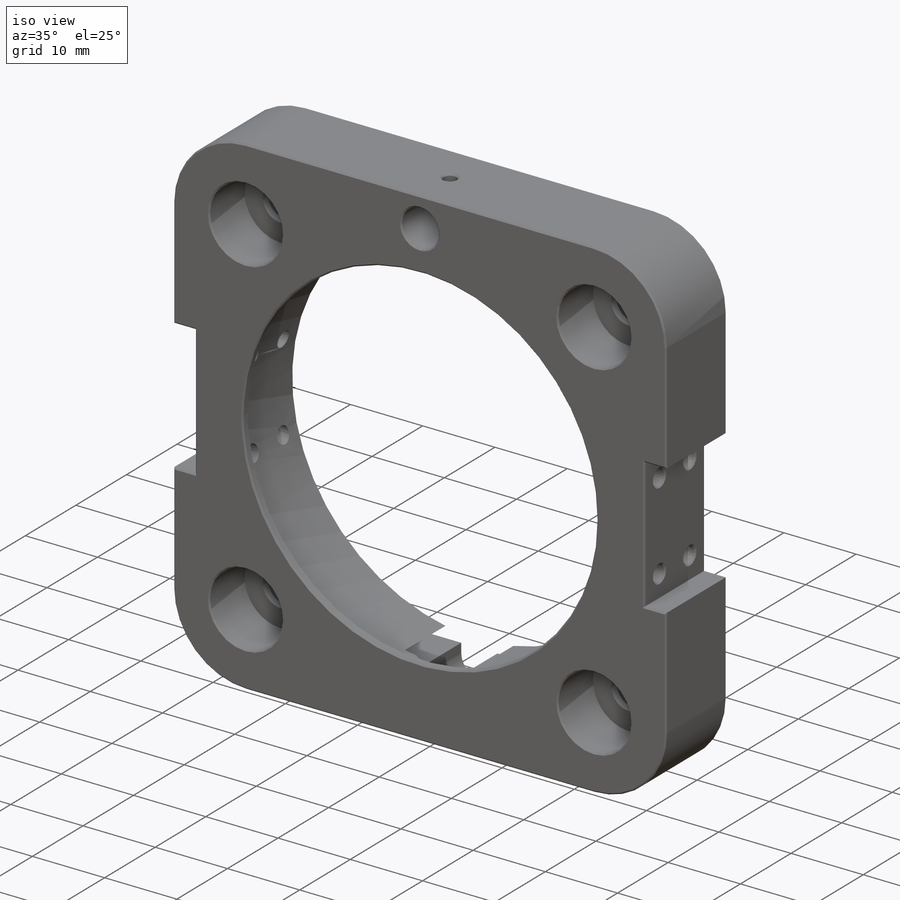
[diagram: iso view]
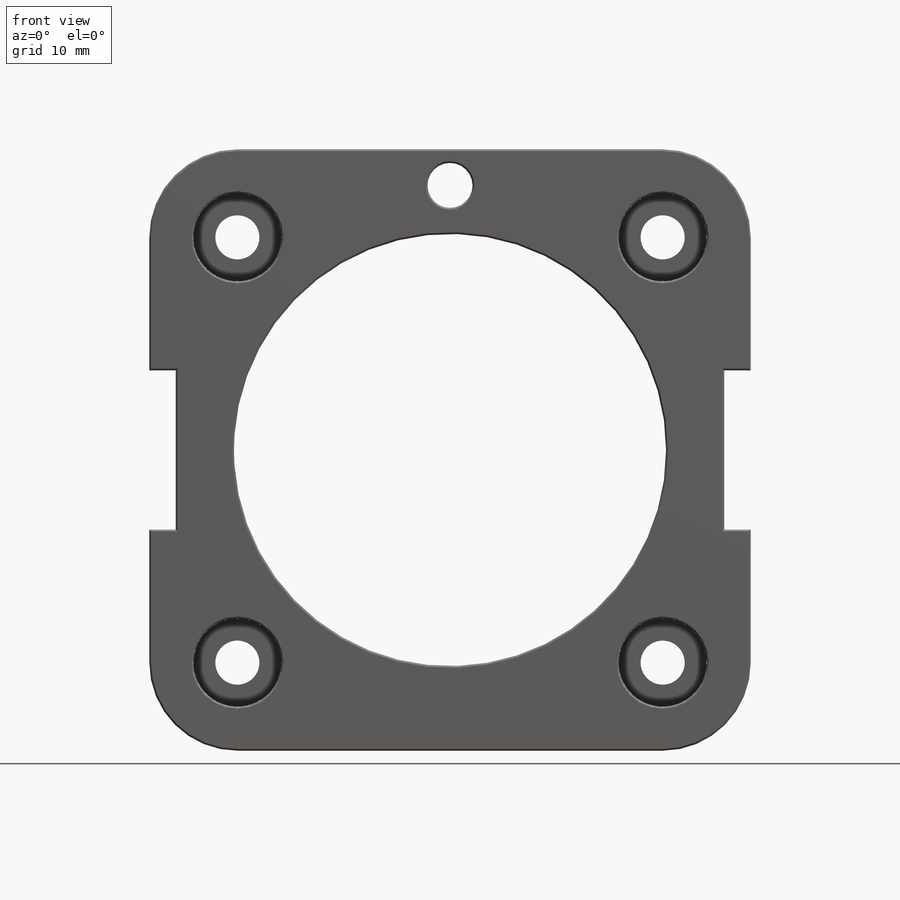
[diagram: front view]
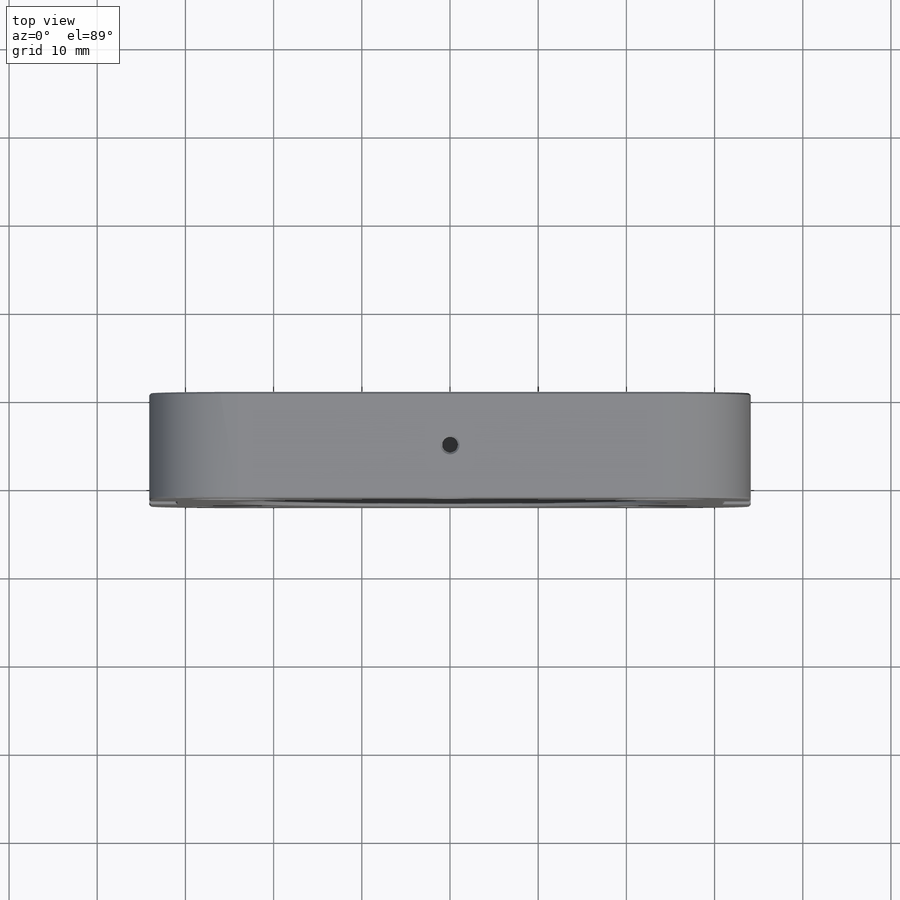
[diagram: top view]
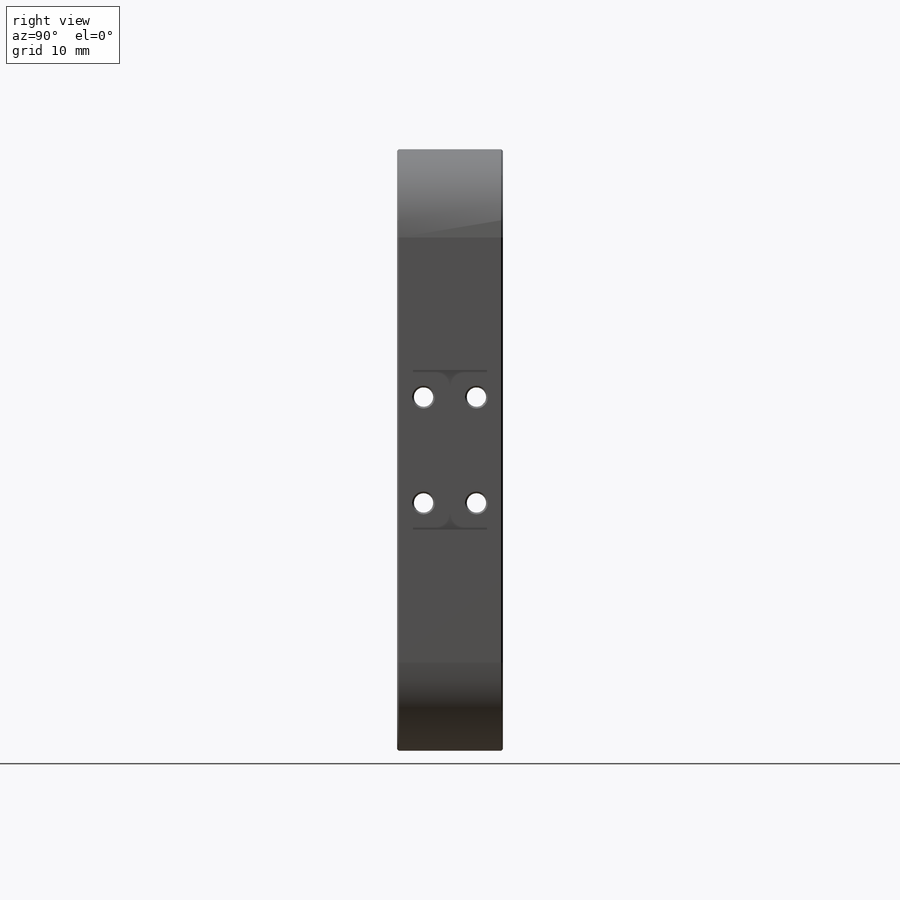
[diagram: right view]
SOLIDWORKS PART (.sldprt)
format: sldprt  version: not decoded by parser v0  size: 943,104 bytes
history: native  units: mm
features: sketch x18, cut_extrude x8, thread x6, hole x3, chamfer x3, extrude x2, plane x2, material x1, fillet x1, mirror x1 (+11 scaffold rows collapsed)
feature tree (56):
  scaffold x11  (default folders/planes/origin — collapsed)
  material  "SUS304"
  sketch  "Sketch1"  dims[D1=68.2mm D8=10.05mm D9=22.0mm D10=15.0mm D2=~24.112341mm D3=~24.112341mm D4=~48.224682mm D5=~48.224682mm D6=~48.224682mm D7=~48.224682mm]
  extrude  "Extrude1"  Depth=12mm
  fillet  "Fillet1"  Radius=10mm
  sketch  "Sketch2"  dims[D1=49.0mm D2=10.0mm]
  cut_extrude  "Extrude2"  [1 undecoded]
  sketch  "Sketch3"
  extrude  "Flag Stop Depth"  Depth=7mm
  sketch  "Sketch4"  dims[c1.D1=50.8mm c1.D2=~55.95128mm c2.D1=50.8mm c2.D2=2.0mm c2.D3=2.0mm c2.D4=50.8mm c3.D1=3.0mm c3.D4=5.0mm c3.D5=5.0mm c3.D6=1.0mm c4.D4=0.5mm c4.D5=28.3mm]
  cut_extrude  "Extrude4"  Depth=11mm
  sketch  "Sketch5"  dims[c1.D1=5.0mm c1.D2=5.0mm c1.D3=5.0mm c1.D4=5.0mm c2.D1=5.0mm c2.D2=5.0mm c2.D3=5.0mm c2.D4=5.0mm]
  plane  "Plane1"  Offset=31.1mm
  sketch  "Sketch7"  dims[c1.D1=18.0mm c1.D2=9.0mm c1.D3=3.0mm c1.D4=15.0mm c1.D5=18.0mm c2.D1=9.025mm c2.D2=3.0mm c2.D3=18.05mm]
  cut_extrude  "Extrude7"  [1 undecoded]
  sketch  "Sketch8"  dims[c1.D1=2.2mm c1.D2=2.5mm c1.D3=2.5mm c1.D4=2.5mm c1.D5=2.5mm c1.D6=2.5mm c1.D7=2.5mm c1.D9=2.5mm c1.D11=2.2mm c2.D2=2.2mm c2.D9=2.2mm c2.D10=2.2mm c2.D11=2.2mm c2.D12=2.2mm c3.D2=6.0mm c3.D3=6.0mm c3.D4=3.0mm c3.D5=3.0mm c3.D6=12.0mm c3.D7=3.0mm c3.D8=3.0mm c3.D9=12.0mm c3.D10=~4.242641mm c4.D4=3.0mm c4.D5=3.0mm c4.D7=3.0mm c4.D8=3.0mm c4.D10=3.0mm c4.D11=3.0mm c4.D1=3.025mm c4.D2=3.0mm c4.D3=3.0mm c5.D4=3.025mm c5.D5=3.0mm c5.D6=3.0mm c5.D7=3.025mm c5.D8=3.025mm]
  cut_extrude  "Cut-Extrude3"  [1 undecoded]
  mirror  "Mirror1"
  hole  "1/4-20 Tapped Hole1"  Diameter=5.1054mm Depth=16.51mm
  sketch  "Sketch22"  dims[D1=30.0mm D2=0.0mm]
  sketch  "Sketch21"  dims[hole-wizard template sketch: 50 standard entries collapsed; hole parameters above]
  thread  "Hole Thread2"  Diameter=12mm  [1 undecoded]
  sketch  "Sketch11"  dims[D1=2.8448mm D2=5.5mm]
  cut_extrude  "Extrude11"  Depth=43mm
  plane  "Plane2"  Offset=6mm
  sketch  "Sketch15"  dims[D1=~2.496778mm]
  cut_extrude  "Extrude15"  Depth=8mm
  chamfer  "Chamfer2"  Distance=0.2mm Angle=45deg
  hole  "#2-56 Tapped Hole2"  [1 undecoded]
  sketch  "Sketch20"  dims[D1=6.0mm]
  thread  "Hole Thread1"  Diameter=2.1844mm  [1 undecoded]
  sketch  "Sketch19"  dims[hole-wizard template sketch: 60 standard entries collapsed; hole parameters kept: c18.Thru Tap Drill Depth=1.5473mm]
  cut_extrude  "Cut-Extrude4"  [1 undecoded]
  sketch  "Sketch24"  dims[c1.D1=0.5mm c1.D4=0.75mm c2.D1=26.25mm c2.D2=1.5mm c2.D3=24.0mm c2.D4=12.0mm]
  cut_extrude  "Cut-Extrude6"  Depth=8mm
  sketch  "Sketch23"  dims[D1=24.5mm]
  sketch  "Sketch25"  dims[D1=~2.468773mm]
  chamfer  "Chamfer3"  Distance=0.2mm Angle=45deg
  hole  "#2-56 Tapped Hole3"  [1 undecoded]
  sketch  "Sketch27"  dims[c1.D6=2.8448mm c1.D1=6.0mm c1.D2=6.0mm c1.D3=6.0mm c1.D4=6.0mm c1.D5=~6.000538mm c2.D4=3.0mm c2.D5=3.0mm c2.D6=7.5mm c2.D7=7.5mm]
  thread  "Hole Thread9"  Diameter=2.1844mm  [1 undecoded]
  thread  "Hole Thread10"  Diameter=2.1844mm  [1 undecoded]
  thread  "Hole Thread11"  Diameter=2.1844mm  [1 undecoded]
  thread  "Hole Thread12"  Diameter=2.1844mm  [1 undecoded]
  sketch  "Sketch26"  dims[hole-wizard template sketch: 60 standard entries collapsed; hole parameters kept: c18.Thru Tap Drill Depth=7.1mm]
  chamfer  "Chamfer4"  Distance=0.2mm Angle=45deg
decode coverage: 34 of 42 modeling features carry decoded parameters
note: ~ marks probable driven/reference dimensions
note: 12 parameter values undecoded
summary: no parameter record found for 6 features
note: suppression state not decoded; provenance and decode notes live in map.json
